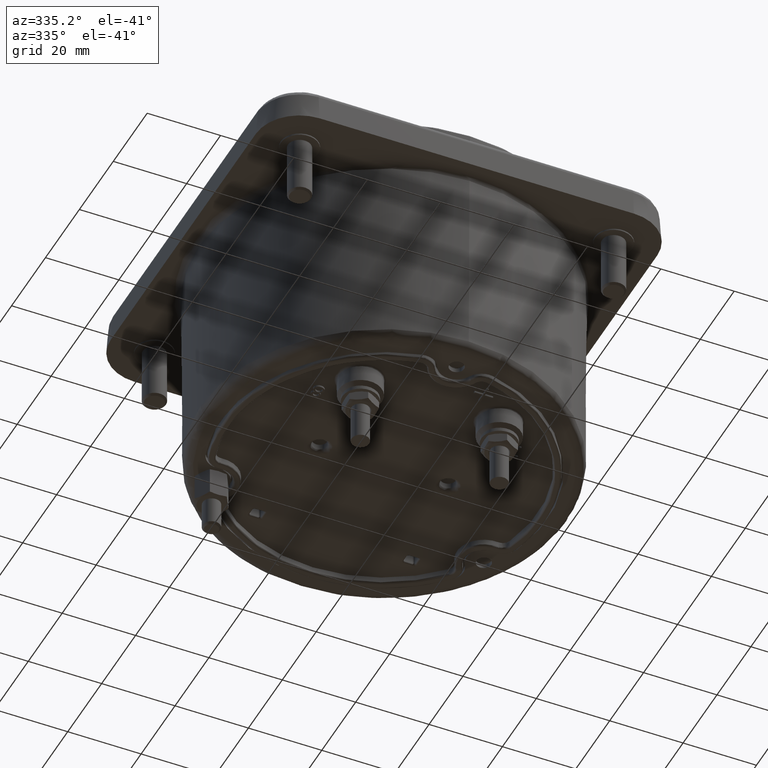
[diagram: clean part render]
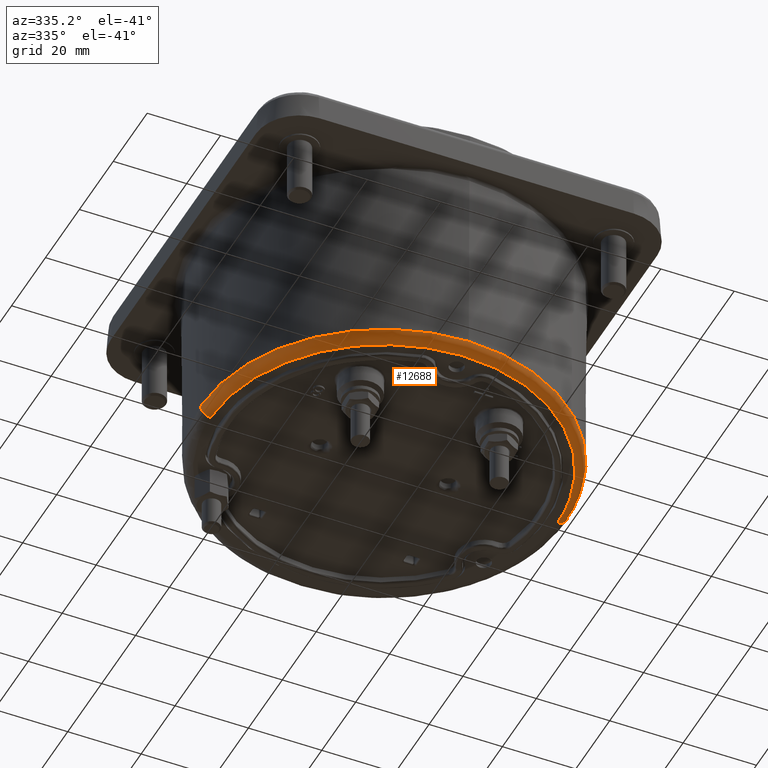
[diagram: same view with one face highlighted and labeled with its STEP entity id]
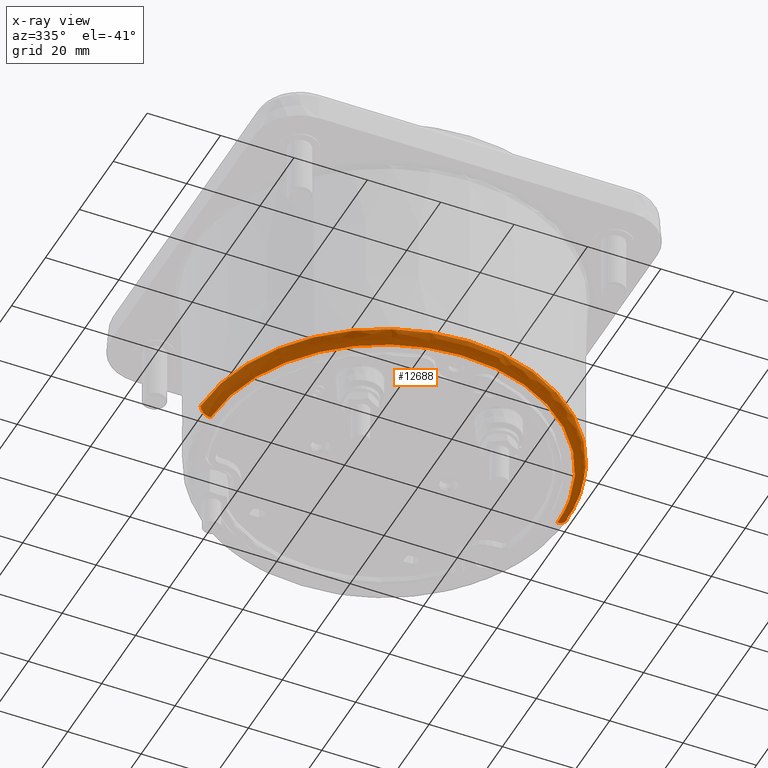
[diagram: x-ray of the same camera — body ghosted, the highlighted face saturated]
A machine part, auxiliary view. The second image highlights one B-rep face of the part: STEP entity #12688.
The next image is the same camera in x-ray: the body ghosted, the highlighted face saturated — about 0% of this face is hidden behind the body in this view.
In plain terms, the highlighted face is a freeform B-spline surface patch.
Its self-contained STEP definition (entity closure, byte-faithful):
#388 = AXIS2_PLACEMENT_3D ( 'NONE', #8618, #10045, #1841 ) ;
#500 = CARTESIAN_POINT ( 'NONE',  ( -1.968925486220982846, -3.937850978847143413, -0.04877558519270733944 ) ) ;
#617 = FACE_OUTER_BOUND ( 'NONE', #11540, .T. ) ;
#913 = CIRCLE ( 'NONE', #5798, 1.968925488800165491 ) ;
#1240 = CARTESIAN_POINT ( 'NONE',  ( 1.861874426734691390, 1.211388297214887600E-09, -0.1550551181102393650 ) ) ;
#1408 = VERTEX_POINT ( 'NONE', #5041 ) ;
#1841 = DIRECTION ( 'NONE',  ( 1.000000000000000000, 6.506285069667056740E-10, 0.000000000000000000 ) ) ;
#2078 =( BOUNDED_CURVE ( )  B_SPLINE_CURVE ( 3, ( #21482, #2896, #16327, #1240 ),
 .UNSPECIFIED., .F., .T. ) 
 B_SPLINE_CURVE_WITH_KNOTS ( ( 4, 4 ),
 ( 0.000000000000000000, 0.5000000000000000000 ),
 .UNSPECIFIED. ) 
 CURVE ( )  GEOMETRIC_REPRESENTATION_ITEM ( )  RATIONAL_B_SPLINE_CURVE ( ( 1.000000000000000000, 0.3333333333333339810, 0.3333333333333339810, 1.000000000000000000 ) ) 
 REPRESENTATION_ITEM ( '' )  );
#2114 = CIRCLE ( 'NONE', #19232, 1.968925488800165491 ) ;
#2458 = VERTEX_POINT ( 'NONE', #5241 ) ;
#2496 = CARTESIAN_POINT ( 'NONE',  ( -1.861874426734681398, -1.211386112482151813E-09, -0.04800125562992441086 ) ) ;
#2896 = CARTESIAN_POINT ( 'NONE',  ( -1.861874424311905196, -3.723748854680752007, -0.1550551181102393650 ) ) ;
#3421 = EDGE_CURVE ( 'NONE', #5361, #12628, #913, .T. ) ;
#4179 = CARTESIAN_POINT ( 'NONE',  ( -1.968925488791601897, -1.281036572047472376E-09, -0.04877558519283541061 ) ) ;
#4268 = CIRCLE ( 'NONE', #388, 0.1070538624803149680 ) ;
#5036 = CARTESIAN_POINT ( 'NONE',  ( 1.861874429157468924, -3.723748852257999342, -0.1550551181102393650 ) ) ;
#5041 = CARTESIAN_POINT ( 'NONE',  ( 1.968925488791611444, 1.281041289031055014E-09, -0.04877558519282694516 ) ) ;
#5241 = CARTESIAN_POINT ( 'NONE',  ( -1.861874426734680954, -1.211381829296230488E-09, -0.1550551181102393650 ) ) ;
#5361 = VERTEX_POINT ( 'NONE', #4179 ) ;
#5426 = CARTESIAN_POINT ( 'NONE',  ( -1.968474494157839372, -1.280734882491858647E-09, -0.1111255921235829169 ) ) ;
#5660 = ORIENTED_EDGE ( 'NONE', *, *, #9766, .T. ) ;
#5784 = AXIS2_PLACEMENT_3D ( 'NONE', #2496, #8935, #15806 ) ;
#5798 = AXIS2_PLACEMENT_3D ( 'NONE', #15067, #16291, #14641 ) ;
#6910 = ORIENTED_EDGE ( 'NONE', *, *, #3421, .F. ) ;
#7291 = CARTESIAN_POINT ( 'NONE',  ( -1.861874424311920961, -3.723748854680768883, -0.1550551181102393650 ) ) ;
#8573 = EDGE_CURVE ( 'NONE', #12628, #1408, #2114, .T. ) ;
#8618 = CARTESIAN_POINT ( 'NONE',  ( 1.861874426734690946, 1.211390816355760297E-09, -0.04800125562992441086 ) ) ;
#8813 = CARTESIAN_POINT ( 'NONE',  ( 1.968925488783053401, 1.281041289025486848E-09, -0.04877558519270733944 ) ) ;
#8935 = DIRECTION ( 'NONE',  ( -6.506283845020279635E-10, 1.000000000000000000, 0.000000000000000000 ) ) ;
#9766 = EDGE_CURVE ( 'NONE', #12071, #1408, #4268, .T. ) ;
#9937 = CARTESIAN_POINT ( 'NONE',  ( -1.924226064727859065, -1.251945783999839941E-09, -0.1550551181102389209 ) ) ;
#10045 = DIRECTION ( 'NONE',  ( 6.506285069667078454E-10, -1.000000000000000000, 0.000000000000000000 ) ) ;
#10457 = CARTESIAN_POINT ( 'NONE',  ( -1.861874426734682064, -1.211378300126433816E-09, -0.1550551181102393650 ) ) ;
#10673 = CARTESIAN_POINT ( 'NONE',  ( 1.968474494157848476, 1.280747859065839631E-09, -0.1111255921235829169 ) ) ;
#11540 = EDGE_LOOP ( 'NONE', ( #12833, #5660, #20257, #6910, #15032 ) ) ;
#11691 = CARTESIAN_POINT ( 'NONE',  ( -1.968925488783043853, -1.281028310503918212E-09, -0.04877558519270733944 ) ) ;
#11827 = CARTESIAN_POINT ( 'NONE',  ( 4.755600987370747928E-15, 2.237929876409763545E-15, -0.04877558519283117788 ) ) ;
#12071 = VERTEX_POINT ( 'NONE', #13385 ) ;
#12318 = CARTESIAN_POINT ( 'NONE',  ( 1.924226064727868390, 1.251958569490190107E-09, -0.1550551181102389209 ) ) ;
#12415 = EDGE_CURVE ( 'NONE', #2458, #12071, #2078, .T. ) ;
#12628 = VERTEX_POINT ( 'NONE', #16502 ) ;
#12688 = ADVANCED_FACE ( 'NONE', ( #617 ), #20820, .T. ) ;
#12833 = ORIENTED_EDGE ( 'NONE', *, *, #12415, .T. ) ;
#13357 = DIRECTION ( 'NONE',  ( 1.000000000000000000, 6.506283845020279635E-10, 4.301193127181230591E-15 ) ) ;
#13385 = CARTESIAN_POINT ( 'NONE',  ( 1.861874426734691390, 1.211388297214887600E-09, -0.1550551181102393650 ) ) ;
#13434 = CARTESIAN_POINT ( 'NONE',  ( -1.968474491596364784, -3.936948989596439574, -0.1111255921235829169 ) ) ;
#13945 = CARTESIAN_POINT ( 'NONE',  ( 1.924226067231781245, -3.848452128203785794, -0.1550551181102389209 ) ) ;
#14233 = EDGE_CURVE ( 'NONE', #2458, #5361, #20109, .T. ) ;
#14641 = DIRECTION ( 'NONE',  ( 1.000000000000000000, 6.506283845020279635E-10, 4.301193127181230591E-15 ) ) ;
#14675 = DIRECTION ( 'NONE',  ( 0.000000000000000000, 0.000000000000000000, 1.000000000000000000 ) ) ;
#15032 = ORIENTED_EDGE ( 'NONE', *, *, #14233, .F. ) ;
#15067 = CARTESIAN_POINT ( 'NONE',  ( 4.755600987370747928E-15, 2.237929876409763545E-15, -0.04877558519283117788 ) ) ;
#15806 = DIRECTION ( 'NONE',  ( -1.000000000000000000, -6.506283845020272398E-10, 0.000000000000000000 ) ) ;
#16291 = DIRECTION ( 'NONE',  ( 0.000000000000000000, 0.000000000000000000, 1.000000000000000000 ) ) ;
#16327 = CARTESIAN_POINT ( 'NONE',  ( 1.861874429157462041, -3.723748852257978026, -0.1550551181102393650 ) ) ;
#16502 = CARTESIAN_POINT ( 'NONE',  ( 4.780733988958603375E-15, -1.968925488800163270, -0.04877558519283117788 ) ) ;
#17116 = CARTESIAN_POINT ( 'NONE',  ( 1.968925491345131951, -3.937850976285074189, -0.04877558519270733944 ) ) ;
#18879 = CARTESIAN_POINT ( 'NONE',  ( 1.861874426734691612, 1.211390816355760710E-09, -0.1550551181102393650 ) ) ;
#19232 = AXIS2_PLACEMENT_3D ( 'NONE', #11827, #14675, #13357 ) ;
#20016 = CARTESIAN_POINT ( 'NONE',  ( -1.924226062223962863, -3.848452130707689989, -0.1550551181102389209 ) ) ;
#20109 = CIRCLE ( 'NONE', #5784, 0.1070538624803149680 ) ;
#20257 = ORIENTED_EDGE ( 'NONE', *, *, #8573, .F. ) ;
#20534 = CARTESIAN_POINT ( 'NONE',  ( 1.968474496719339939, -3.936948987034957881, -0.1111255921235829169 ) ) ;
#20820 =( BOUNDED_SURFACE ( )  B_SPLINE_SURFACE ( 3, 3, ( 
 ( #18879, #5036, #7291, #10457 ),
 ( #12318, #13945, #20016, #9937 ),
 ( #10673, #20534, #13434, #5426 ),
 ( #8813, #17116, #500, #11691 ) ),
 .UNSPECIFIED., .F., .F., .T. ) 
 B_SPLINE_SURFACE_WITH_KNOTS ( ( 4, 4 ),
 ( 4, 4 ),
 ( 0.000000000000000000, 1.000000000000000000 ),
 ( 0.000000000000000000, 1.000000000000000000 ),
 .UNSPECIFIED. ) 
 GEOMETRIC_REPRESENTATION_ITEM ( )  RATIONAL_B_SPLINE_SURFACE ( (
 ( 1.000000000000000000, 0.3333333333333318715, 0.3333333333333318715, 1.000000000000000000),
 ( 0.8064396365959375368, 0.2688132121986446799, 0.2688132121986446799, 0.8064396365959375368),
 ( 0.8064396365959375368, 0.2688132121986446799, 0.2688132121986446799, 0.8064396365959375368),
 ( 1.000000000000000000, 0.3333333333333318715, 0.3333333333333318715, 1.000000000000000000) ) ) 
 REPRESENTATION_ITEM ( '' )  SURFACE ( )  );
#21482 = CARTESIAN_POINT ( 'NONE',  ( -1.861874426734680954, -1.211381829296230488E-09, -0.1550551181102393650 ) ) ;